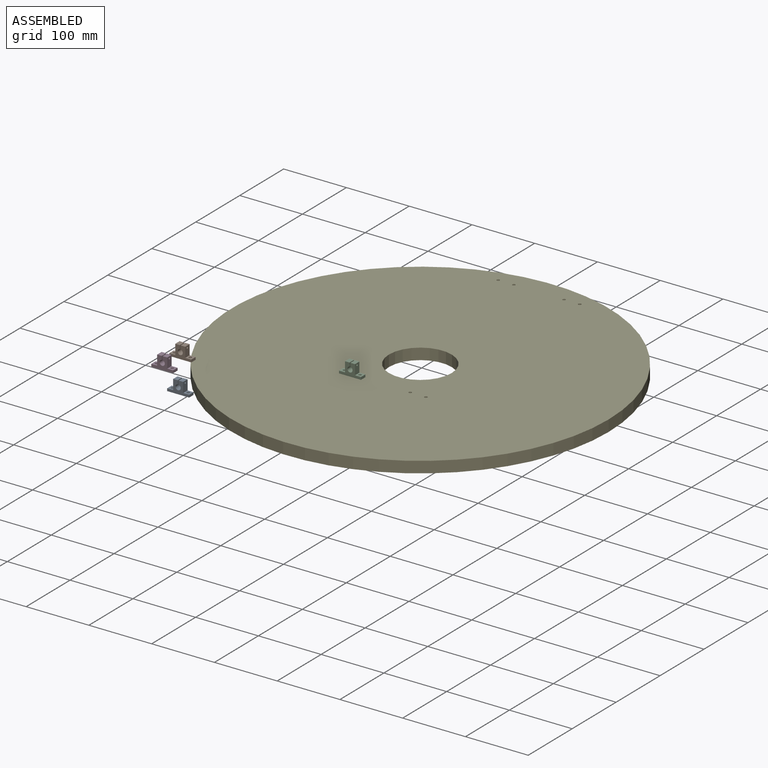
[diagram: assembled view]
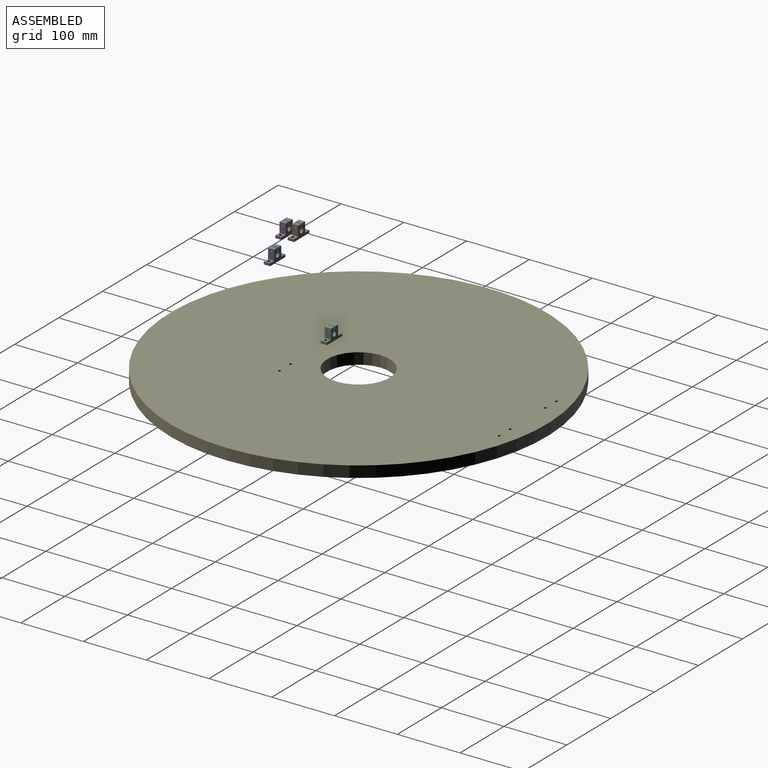
[diagram: assembled view, second angle]
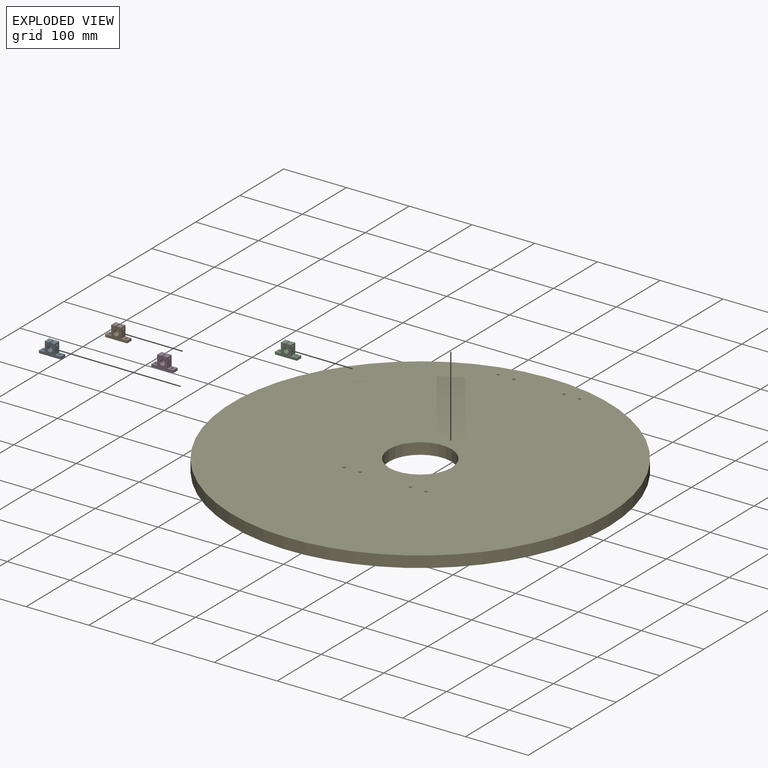
[diagram: exploded view]
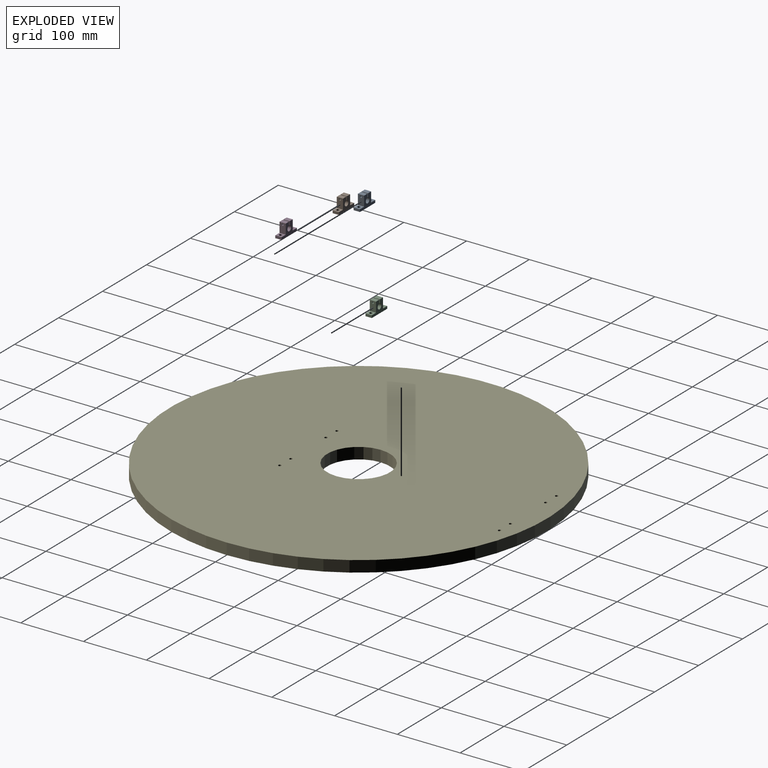
[diagram: exploded view, second angle]
ASSEMBLY  parts=5 mates=2
PART A: 18 faces, bbox 35x10x20 mm
  f0: cylinder r=4.1mm len=10mm, axis (0,1,0), area 242.5mm2, adj f1,f11,f12,f13
  f1: plane 10x5.97mm, normal (1,0,0), area 52.6mm2, adj f0,f2,f12,f13,f17
  f2: plane 10x7.25mm, normal (0,0,1), area 72.5mm2, adj f1,f3,f12,f13
  f3: plane 16x10mm, normal (-1,0,0), area 152.9mm2, adj f2,f4,f12,f13,f17
  f4: plane 10x9.5mm, normal (0,0,1), area 79.1mm2, adj f3,f5,f12,f13,f14
  f5: plane 10x4mm, normal (-1,0,0), area 40mm2, adj f4,f6,f12,f13
  f6: plane 35x10mm, normal (0,0,-1), area 318.2mm2, adj f5,f7,f12,f13,f14,f15
  f7: plane 10x4mm, normal (1,0,0), area 40mm2, adj f6,f8,f12,f13
  f8: plane 10x9.5mm, normal (0,0,1), area 79.1mm2, adj f7,f9,f12,f13,f15
  f9: plane 16x10mm, normal (1,0,0), area 152.9mm2, adj f8,f10,f12,f13,f16
  f10: plane 10x7.25mm, normal (0,0,1), area 72.5mm2, adj f9,f11,f12,f13
  f11: plane 10x5.97mm, normal (-1,0,0), area 52.6mm2, adj f0,f10,f12,f13,f16
  f12: plane 35x20mm, normal (0,-1,0), area 334.3mm2, adj f0,f1,f2,f3,f4,f5,f6,f7
  f13: plane 35x20mm, normal (0,1,0), area 334.3mm2, adj f0,f1,f2,f3,f4,f5,f6,f7
  f14: cylinder r=2.25mm len=4.5mm, axis (0,0,1), area 56.5mm2, adj f4,f6
  f15: cylinder r=2.25mm len=4.5mm, axis (0,0,1), area 56.5mm2, adj f6,f8
  f16: cylinder r=1.5mm len=7.25mm, axis (-1,0,0), area 68.3mm2, adj f9,f11
  f17: cylinder r=1.5mm len=7.25mm, axis (-1,0,0), area 68.3mm2, adj f1,f3
PART B: same geometry as A
PART C: same geometry as A
PART D: same geometry as A
PART E: 12 faces, bbox 600x600x18 mm
  f0: cylinder r=50mm len=100mm, axis (0,0,-1), area 5654.9mm2, adj f10,f11
  f1: cylinder r=2.25mm len=18mm, axis (0,0,-1), area 254.5mm2, adj f10,f11
  f2: cylinder r=2.25mm len=18mm, axis (0,0,-1), area 254.5mm2, adj f10,f11
  f3: cylinder r=2.25mm len=18mm, axis (0,0,-1), area 254.5mm2, adj f10,f11
  f4: cylinder r=2.25mm len=18mm, axis (0,0,-1), area 254.5mm2, adj f10,f11
  f5: cylinder r=2.25mm len=18mm, axis (0,0,-1), area 254.5mm2, adj f10,f11
  f6: cylinder r=2.25mm len=18mm, axis (0,0,-1), area 254.5mm2, adj f10,f11
  f7: cylinder r=2.25mm len=18mm, axis (0,0,-1), area 254.5mm2, adj f10,f11
  f8: cylinder r=2.25mm len=18mm, axis (0,0,-1), area 254.5mm2, adj f10,f11
  f9: cylinder r=300mm len=600mm, axis (0,0,-1), area 33929.2mm2, adj f10,f11
  f10: plane 600x600mm, normal (0,0,1), area 274762.1mm2, adj f0,f1,f2,f3,f4,f5,f6,f7
  f11: plane 600x600mm, normal (0,0,-1), area 274762.1mm2, adj f0,f1,f2,f3,f4,f5,f6,f7
PLACE A t=(-196.88,-248.47,25.8)mm
PLACE B t=(-212.55,-221.35,61.9)mm
PLACE C t=(-55.71,-59.05,16.77)mm
PLACE D t=(-222.54,-248.11,53.94)mm
PLACE E t=(-3.21,15.95,-1.23)mm
MATE cylindrical C.f14 <-> E.f1  axis (0,0,1) through (-68.21,-64.05,20.77)mm
MATE planar C.f6 <-> E.f10  axis (0,0,-1) through (-55.71,-64.05,16.77)mm
